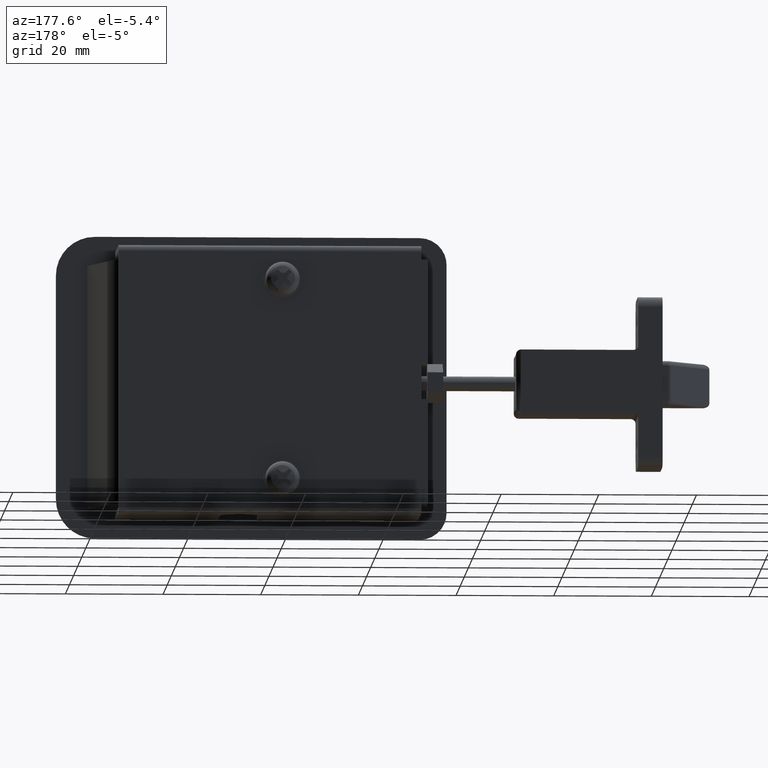
[diagram: clean part render]
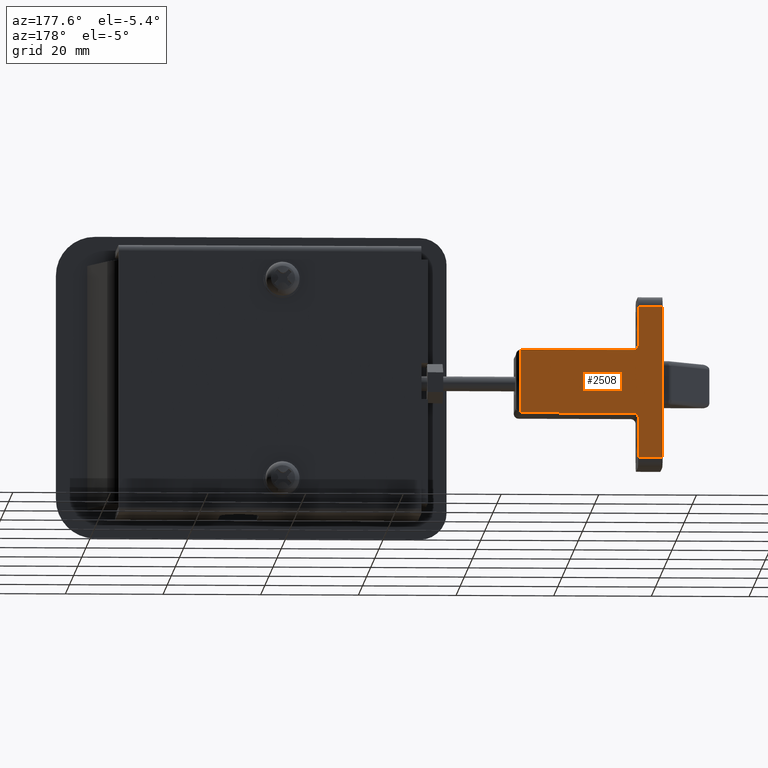
[diagram: same view with one face highlighted and labeled with its STEP entity id]
A machine part, auxiliary view. The second image highlights one B-rep face of the part: STEP entity #2508.
In plain terms, the highlighted face is a freeform B-spline surface patch.
Its self-contained STEP definition (entity closure, byte-faithful):
#1930=CARTESIAN_POINT('',(35.500000000000000,14.750000000000000,273.0));
#1931=VERTEX_POINT('',#1930);
#1952=CARTESIAN_POINT('',(22.500000000000000,14.750000000000000,273.0));
#1953=VERTEX_POINT('',#1952);
#1967=CARTESIAN_POINT('',(35.500000000000000,14.750000000000000,273.0));
#1968=CARTESIAN_POINT('',(22.500000000000000,14.750000000000000,273.0));
#1969=QUASI_UNIFORM_CURVE('',1,(#1967,#1968),.UNSPECIFIED.,.F.,.U.);
#1970=EDGE_CURVE('',#1931,#1953,#1969,.T.);
#2002=CARTESIAN_POINT('',(21.500000000000000,14.750000000000000,297.0));
#2003=VERTEX_POINT('',#2002);
#2009=CARTESIAN_POINT('',(22.500000000000000,14.750000000000000,296.0));
#2010=VERTEX_POINT('',#2009);
#2011=CARTESIAN_POINT('',(22.500000000000000,14.750000000000000,296.0));
#2012=CARTESIAN_POINT('',(22.500305453089229,14.750000000000011,296.163656818301380));
#2013=CARTESIAN_POINT('',(22.413915194504611,14.749999999999970,296.507130964090490));
#2014=CARTESIAN_POINT('',(22.039776015907290,14.750000000000080,296.900332492217390));
#2015=CARTESIAN_POINT('',(21.680052347174179,14.749999999999931,297.000443810425910));
#2016=CARTESIAN_POINT('',(21.500000000000000,14.750000000000000,297.0));
#2017=B_SPLINE_CURVE_WITH_KNOTS('',3,(#2011,#2012,#2013,#2014,#2015,#2016),.UNSPECIFIED.,.F.,.U.,(4,1,1,4),(0.000001361277836,0.490937338283367,1.030891485299009,1.570953883735077),.UNSPECIFIED.);
#2018=EDGE_CURVE('',#2010,#2003,#2017,.T.);
#2113=CARTESIAN_POINT('',(35.500000000000000,14.750000000000000,296.0));
#2114=VERTEX_POINT('',#2113);
#2120=CARTESIAN_POINT('',(36.500000000000000,14.750000000000000,297.0));
#2121=VERTEX_POINT('',#2120);
#2122=CARTESIAN_POINT('',(36.500000000000000,14.750000000000000,297.0));
#2123=CARTESIAN_POINT('',(36.319922774862043,14.750000000000011,297.000446952963500));
#2124=CARTESIAN_POINT('',(35.960325910602151,14.749999999999980,296.900261323118120));
#2125=CARTESIAN_POINT('',(35.585958939896130,14.750000000000050,296.507192694045900));
#2126=CARTESIAN_POINT('',(35.499758990941572,14.749999999999950,296.163635197622910));
#2127=CARTESIAN_POINT('',(35.500000000000000,14.750000000000000,296.0));
#2128=B_SPLINE_CURVE_WITH_KNOTS('',3,(#2122,#2123,#2124,#2125,#2126,#2127),.UNSPECIFIED.,.F.,.U.,(4,1,1,4),(0.000001361285056,0.540063759717975,1.080017906732140,1.570953883735324),.UNSPECIFIED.);
#2129=EDGE_CURVE('',#2121,#2114,#2128,.T.);
#2210=CARTESIAN_POINT('',(13.500000000000000,14.750000000000000,297.0));
#2211=VERTEX_POINT('',#2210);
#2229=CARTESIAN_POINT('',(13.500000000000000,14.750000000000000,302.0));
#2230=VERTEX_POINT('',#2229);
#2241=CARTESIAN_POINT('',(13.500000000000000,14.750000000000000,297.0));
#2242=CARTESIAN_POINT('',(13.500000000000000,14.750000000000000,302.0));
#2243=QUASI_UNIFORM_CURVE('',1,(#2241,#2242),.UNSPECIFIED.,.F.,.U.);
#2244=EDGE_CURVE('',#2211,#2230,#2243,.T.);
#2265=CARTESIAN_POINT('',(44.500000000000000,14.750000000000000,302.0));
#2266=VERTEX_POINT('',#2265);
#2284=CARTESIAN_POINT('',(44.500000000000000,14.750000000000000,297.0));
#2285=VERTEX_POINT('',#2284);
#2296=CARTESIAN_POINT('',(44.500000000000000,14.750000000000000,302.0));
#2297=CARTESIAN_POINT('',(44.500000000000000,14.750000000000000,297.0));
#2298=QUASI_UNIFORM_CURVE('',1,(#2296,#2297),.UNSPECIFIED.,.F.,.U.);
#2299=EDGE_CURVE('',#2266,#2285,#2298,.T.);
#2471=CARTESIAN_POINT('',(11.951550060084010,14.750000000000000,303.448549943792270));
#2472=CARTESIAN_POINT('',(46.048450771400788,14.750000000000000,303.448549943792270));
#2473=CARTESIAN_POINT('',(11.951550060084010,14.750000000000000,271.551449278366870));
#2474=CARTESIAN_POINT('',(46.048450771400788,14.750000000000000,271.551449278366870));
#2475=B_SPLINE_SURFACE_WITH_KNOTS('',1,1,((#2471,#2473),(#2472,#2474)),.UNSPECIFIED.,.F.,.F.,.U.,(2,2),(2,2),(0.0,34.096900711316778),(0.0,31.897100665425398),.UNSPECIFIED.);
#2476=CARTESIAN_POINT('',(35.500000000000000,14.750000000000000,296.0));
#2477=CARTESIAN_POINT('',(35.500000000000000,14.750000000000000,273.0));
#2478=QUASI_UNIFORM_CURVE('',1,(#2476,#2477),.UNSPECIFIED.,.F.,.U.);
#2479=EDGE_CURVE('',#2114,#1931,#2478,.T.);
#2480=ORIENTED_EDGE('',*,*,#2479,.T.);
#2481=ORIENTED_EDGE('',*,*,#1970,.T.);
#2482=CARTESIAN_POINT('',(22.500000000000000,14.750000000000000,273.0));
#2483=CARTESIAN_POINT('',(22.500000000000000,14.750000000000000,296.0));
#2484=QUASI_UNIFORM_CURVE('',1,(#2482,#2483),.UNSPECIFIED.,.F.,.U.);
#2485=EDGE_CURVE('',#1953,#2010,#2484,.T.);
#2486=ORIENTED_EDGE('',*,*,#2485,.T.);
#2487=ORIENTED_EDGE('',*,*,#2018,.T.);
#2488=CARTESIAN_POINT('',(21.500000000000000,14.750000000000000,297.0));
#2489=CARTESIAN_POINT('',(13.500000000000000,14.750000000000000,297.0));
#2490=QUASI_UNIFORM_CURVE('',1,(#2488,#2489),.UNSPECIFIED.,.F.,.U.);
#2491=EDGE_CURVE('',#2003,#2211,#2490,.T.);
#2492=ORIENTED_EDGE('',*,*,#2491,.T.);
#2493=ORIENTED_EDGE('',*,*,#2244,.T.);
#2494=CARTESIAN_POINT('',(13.500000000000000,14.750000000000000,302.0));
#2495=CARTESIAN_POINT('',(44.500000000000000,14.750000000000000,302.0));
#2496=QUASI_UNIFORM_CURVE('',1,(#2494,#2495),.UNSPECIFIED.,.F.,.U.);
#2497=EDGE_CURVE('',#2230,#2266,#2496,.T.);
#2498=ORIENTED_EDGE('',*,*,#2497,.T.);
#2499=ORIENTED_EDGE('',*,*,#2299,.T.);
#2500=CARTESIAN_POINT('',(44.500000000000000,14.750000000000000,297.0));
#2501=CARTESIAN_POINT('',(36.500000000000000,14.750000000000000,297.0));
#2502=QUASI_UNIFORM_CURVE('',1,(#2500,#2501),.UNSPECIFIED.,.F.,.U.);
#2503=EDGE_CURVE('',#2285,#2121,#2502,.T.);
#2504=ORIENTED_EDGE('',*,*,#2503,.T.);
#2505=ORIENTED_EDGE('',*,*,#2129,.T.);
#2506=EDGE_LOOP('',(#2480,#2481,#2486,#2487,#2492,#2493,#2498,#2499,#2504,#2505));
#2507=FACE_OUTER_BOUND('',#2506,.T.);
#2508=ADVANCED_FACE('',(#2507),#2475,.T.);